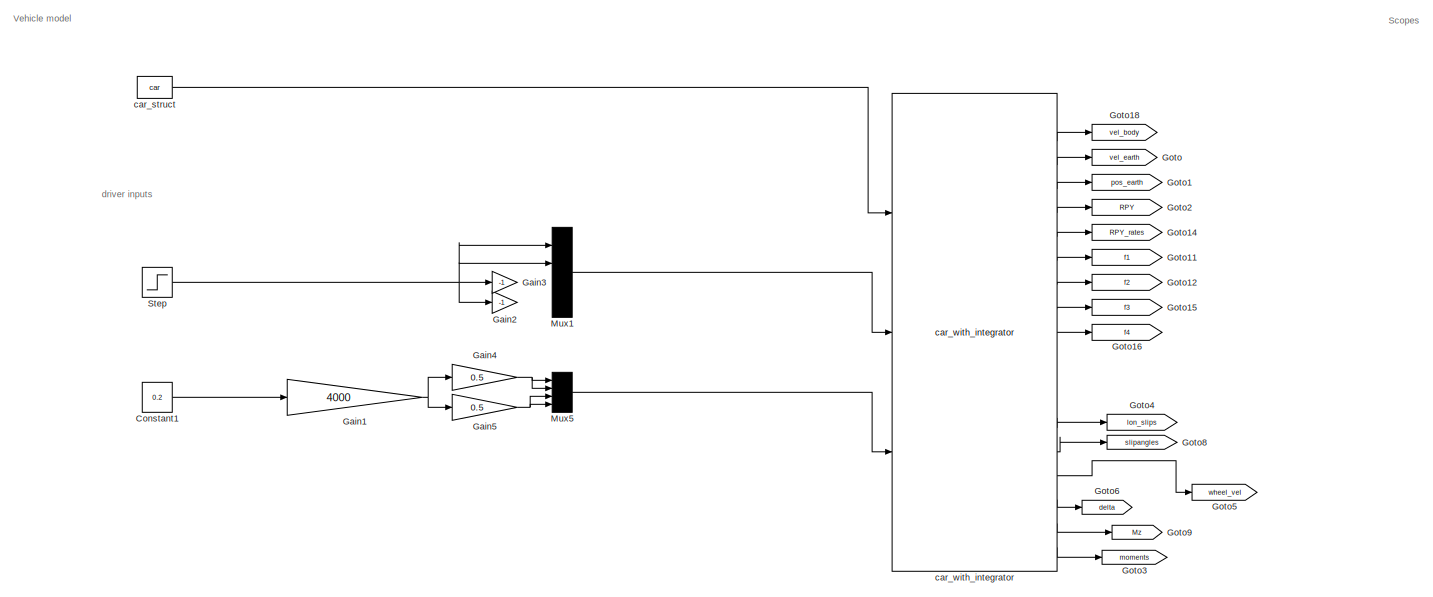
[diagram: root canvas - part 1/2, center side, full height]
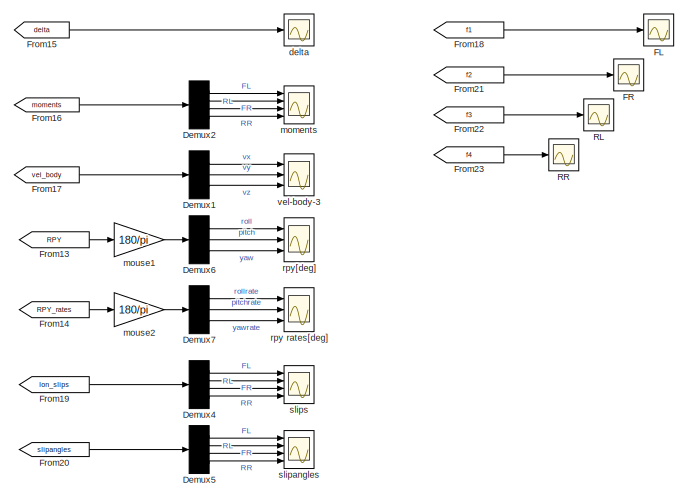
[diagram: root canvas - part 2/2, right side, full height]
MODEL slx_7158e97f0863
KIND model
CONFIG AbsTol = auto
CONFIG EnableMultiTasking = on
CONFIG FixedStep = 0.001
CONFIG InitFcn = create_ephysenet_inifile\n
CONFIG MaxStep = auto
CONFIG MinStep = auto
CONFIG PreLoadFcn = run('m-files/add_to_path.m')
CONFIG RelTol = 1e-3
CONFIG SampleTimeConstraint = Unconstrained
CONFIG Solver = ode1
CONFIG SolverName = ode1
CONFIG StartTime = 0.0
CONFIG StopTime = 50
BLOCK [Constant] Constant1
  Value = 0.2
BLOCK [Demux] Demux1
  DisplayOption = bar
  Outputs = 3
  Ports = [1, 3]
BLOCK [Demux] Demux2
  DisplayOption = bar
  Ports = [1, 4]
BLOCK [Demux] Demux4
  DisplayOption = bar
  Ports = [1, 4]
BLOCK [Demux] Demux5
  DisplayOption = bar
  Ports = [1, 4]
BLOCK [Demux] Demux6
  DisplayOption = bar
  Outputs = 3
  Ports = [1, 3]
BLOCK [Demux] Demux7
  DisplayOption = bar
  Outputs = 3
  Ports = [1, 3]
BLOCK [Scope] FL
  Floating = off
  NumInputPorts = 1
  Ports = [1]
  ScopeSpecificationString = Simulink.scopes.TimeScopeBlockCfg('CurrentConfiguration', extmgr.ConfigurationSet(extmgr.Configuration('Core','General UI',true),extmgr.Configuration('Core','Source UI',true),extmgr.Configuration('Sources','WiredSimulink',true,'DataLoggingVariableName','ScopeData2'),extmgr.Configuration('Visuals','Time Domain',true),extmgr.Configuration('Tools','Plot Navigation',true),extmgr.Configuration('Tools',...<+40ch>
BLOCK [Scope] FR
  Floating = off
  NumInputPorts = 1
  Ports = [1]
  ScopeSpecificationString = Simulink.scopes.TimeScopeBlockCfg('CurrentConfiguration', extmgr.ConfigurationSet(extmgr.Configuration('Core','General UI',true),extmgr.Configuration('Core','Source UI',true),extmgr.Configuration('Sources','WiredSimulink',true,'DataLoggingVariableName','ScopeData3'),extmgr.Configuration('Visuals','Time Domain',true),extmgr.Configuration('Tools','Plot Navigation',true),extmgr.Configuration('Tools',...<+40ch>
BLOCK [From] From13
  GotoTag = RPY
  TagVisibility = global
BLOCK [From] From14
  GotoTag = RPY_rates
BLOCK [From] From15
  GotoTag = delta
BLOCK [From] From16
  GotoTag = moments
BLOCK [From] From17
  GotoTag = vel_body
BLOCK [From] From18
  GotoTag = f1
BLOCK [From] From19
  GotoTag = lon_slips
BLOCK [From] From20
  GotoTag = slipangles
BLOCK [From] From21
  GotoTag = f2
BLOCK [From] From22
  GotoTag = f3
BLOCK [From] From23
  GotoTag = f4
BLOCK [Gain] Gain1
  Gain = 4000
  OutDataTypeStr = Inherit: Inherit via internal rule
  ParamDataTypeStr = Inherit: Inherit via internal rule
  SaturateOnIntegerOverflow = off
BLOCK [Gain] Gain2
  Gain = -1
  OutDataTypeStr = Inherit: Inherit via internal rule
  ParamDataTypeStr = Inherit: Inherit via internal rule
  SaturateOnIntegerOverflow = off
BLOCK [Gain] Gain3
  Gain = -1
  OutDataTypeStr = Inherit: Inherit via internal rule
  ParamDataTypeStr = Inherit: Inherit via internal rule
  SaturateOnIntegerOverflow = off
BLOCK [Gain] Gain4
  Gain = 0.5
  OutDataTypeStr = Inherit: Inherit via internal rule
  ParamDataTypeStr = Inherit: Inherit via internal rule
  SaturateOnIntegerOverflow = off
BLOCK [Gain] Gain5
  Gain = 0.5
  OutDataTypeStr = Inherit: Inherit via internal rule
  ParamDataTypeStr = Inherit: Inherit via internal rule
  SaturateOnIntegerOverflow = off
BLOCK [Goto] Goto
  GotoTag = vel_earth
BLOCK [Goto] Goto1
  GotoTag = pos_earth
  TagVisibility = global
BLOCK [Goto] Goto11
  GotoTag = f1
BLOCK [Goto] Goto12
  GotoTag = f2
BLOCK [Goto] Goto14
  GotoTag = RPY_rates
BLOCK [Goto] Goto15
  GotoTag = f3
BLOCK [Goto] Goto16
  GotoTag = f4
BLOCK [Goto] Goto18
  GotoTag = vel_body
BLOCK [Goto] Goto2
  GotoTag = RPY
  TagVisibility = global
BLOCK [Goto] Goto3
  GotoTag = moments
BLOCK [Goto] Goto4
  GotoTag = lon_slips
BLOCK [Goto] Goto5
  GotoTag = wheel_vel
BLOCK [Goto] Goto6
  GotoTag = delta
BLOCK [Goto] Goto8
  GotoTag = slipangles
BLOCK [Goto] Goto9
  GotoTag = Mz
BLOCK [Mux] Mux1
  DisplayOption = bar
  Ports = [4, 1]
BLOCK [Mux] Mux5
  DisplayOption = bar
  Ports = [4, 1]
BLOCK [Scope] RL
  Floating = off
  NumInputPorts = 1
  Ports = [1]
  ScopeSpecificationString = Simulink.scopes.TimeScopeBlockCfg('CurrentConfiguration', extmgr.ConfigurationSet(extmgr.Configuration('Core','General UI',true),extmgr.Configuration('Core','Source UI',true),extmgr.Configuration('Sources','WiredSimulink',true,'DataLoggingVariableName','ScopeData4'),extmgr.Configuration('Visuals','Time Domain',true),extmgr.Configuration('Tools','Plot Navigation',true),extmgr.Configuration('Tools',...<+40ch>
BLOCK [Scope] RR
  Floating = off
  NumInputPorts = 1
  Ports = [1]
  ScopeSpecificationString = Simulink.scopes.TimeScopeBlockCfg('CurrentConfiguration', extmgr.ConfigurationSet(extmgr.Configuration('Core','General UI',true),extmgr.Configuration('Core','Source UI',true),extmgr.Configuration('Sources','WiredSimulink',true,'DataLoggingVariableName','ScopeData5'),extmgr.Configuration('Visuals','Time Domain',true),extmgr.Configuration('Tools','Plot Navigation',true),extmgr.Configuration('Tools',...<+40ch>
BLOCK [Step] Step
  After = deg2rad(15)
  SampleTime = 0
  Time = 10
BLOCK [Constant] car_struct
  OutDataTypeStr = Bus: car_bus
  Value = car
BLOCK [Reference] car_with_integrator  REF=car_library/car_with_integrator  (lib defined in slx_7c8ac54ddd08)
  Ports = [3, 19]
  SourceBlock = car_library/car_with_integrator
  SourceType = SubSystem
BLOCK [Scope] delta
  Floating = off
  NumInputPorts = 1
  Ports = [1]
  ScopeSpecificationString = Simulink.scopes.TimeScopeBlockCfg('CurrentConfiguration', extmgr.ConfigurationSet(extmgr.Configuration('Core','General UI',true),extmgr.Configuration('Core','Source UI',true),extmgr.Configuration('Sources','WiredSimulink',true,'DataLoggingVariableName','ScopeData5'),extmgr.Configuration('Visuals','Time Domain',true,'SerializedDisplays',{struct('MinYLimReal','-0.04353','MaxYLimReal','0.35679','YLab...<+1427ch>
BLOCK [Scope] moments
  Floating = off
  NumInputPorts = 4
  Ports = [4]
  ScopeSpecificationString = Simulink.scopes.TimeScopeBlockCfg('CurrentConfiguration', extmgr.ConfigurationSet(extmgr.Configuration('Core','General UI',true),extmgr.Configuration('Core','Source UI',true),extmgr.Configuration('Sources','WiredSimulink',true,'DataLoggingVariableName','ScopeData6'),extmgr.Configuration('Visuals','Time Domain',true,'SerializedDisplays',{struct('MinYLimReal','-1152.50011','MaxYLimReal','1192.49995'...<+1468ch>
BLOCK [Gain] mouse1
  Gain = 180/pi
  OutDataTypeStr = Inherit: Inherit via internal rule
  ParamDataTypeStr = Inherit: Inherit via internal rule
  SaturateOnIntegerOverflow = off
BLOCK [Gain] mouse2
  Gain = 180/pi
  OutDataTypeStr = Inherit: Inherit via internal rule
  ParamDataTypeStr = Inherit: Inherit via internal rule
  SaturateOnIntegerOverflow = off
BLOCK [Scope] rpy rates[deg]
  Floating = off
  NumInputPorts = 3
  Ports = [3]
  ScopeSpecificationString = Simulink.scopes.TimeScopeBlockCfg('CurrentConfiguration', extmgr.ConfigurationSet(extmgr.Configuration('Core','General UI',true),extmgr.Configuration('Core','Source UI',true),extmgr.Configuration('Sources','WiredSimulink',true,'DataLoggingVariableName','ScopeData1'),extmgr.Configuration('Visuals','Time Domain',true,'SerializedDisplays',{struct('MinYLimReal','-0.17374','MaxYLimReal','1.45174','YLab...<+1430ch>
BLOCK [Scope] rpy[deg] 
  Floating = off
  NumInputPorts = 3
  Ports = [3]
  ScopeSpecificationString = Simulink.scopes.TimeScopeBlockCfg('CurrentConfiguration', extmgr.ConfigurationSet(extmgr.Configuration('Core','General UI',true),extmgr.Configuration('Core','Source UI',true),extmgr.Configuration('Sources','WiredSimulink',true,'DataLoggingVariableName','ScopeData7'),extmgr.Configuration('Visuals','Time Domain',true,'SerializedDisplays',{struct('MinYLimReal','-0.17374','MaxYLimReal','1.45174','YLab...<+1448ch>
BLOCK [Scope] slipangles
  Floating = off
  NumInputPorts = 4
  Ports = [4]
  ScopeSpecificationString = Simulink.scopes.TimeScopeBlockCfg('CurrentConfiguration', extmgr.ConfigurationSet(extmgr.Configuration('Core','General UI',true),extmgr.Configuration('Core','Source UI',true),extmgr.Configuration('Sources','WiredSimulink',true,'DataLoggingVariableName','ScopeData4'),extmgr.Configuration('Visuals','Time Domain',true,'SerializedDisplays',{struct('MinYLimReal','-1.96346','MaxYLimReal','1.96341','YLab...<+1492ch>
BLOCK [Scope] slips
  Floating = off
  NumInputPorts = 4
  Ports = [4]
  ScopeSpecificationString = Simulink.scopes.TimeScopeBlockCfg('CurrentConfiguration', extmgr.ConfigurationSet(extmgr.Configuration('Core','General UI',true),extmgr.Configuration('Core','Source UI',true),extmgr.Configuration('Sources','WiredSimulink',true,'DataLoggingVariableName','ScopeData3'),extmgr.Configuration('Visuals','Time Domain',true,'SerializedDisplays',{struct('MinYLimReal','-1.89286','MaxYLimReal','2.10714','YLab...<+1446ch>
BLOCK [Scope] vel-body-3 
  Floating = off
  NumInputPorts = 3
  Ports = [3]
  ScopeSpecificationString = Simulink.scopes.TimeScopeBlockCfg('CurrentConfiguration', extmgr.ConfigurationSet(extmgr.Configuration('Core','General UI',true),extmgr.Configuration('Core','Source UI',true),extmgr.Configuration('Sources','WiredSimulink',true,'DataLoggingVariableName','ScopeData1'),extmgr.Configuration('Visuals','Time Domain',true,'SerializedDisplays',{struct('MinYLimReal','8.49008','MaxYLimReal','90.43186','YLab...<+2774ch>
ANNOTATION (root): Scopes
ANNOTATION (root): Vehicle model
ANNOTATION (root): driver inputs
LINE Constant1:1 -> Gain1:1
LINE Demux1:1 -> vel-body-3 :1
LINE Demux1:2 -> vel-body-3 :2
LINE Demux1:3 -> vel-body-3 :3
LINE Demux2:1 -> moments:1
LINE Demux2:2 -> moments:2
LINE Demux2:3 -> moments:3
LINE Demux2:4 -> moments:4
LINE Demux4:1 -> slips:1
LINE Demux4:2 -> slips:2
LINE Demux4:3 -> slips:3
LINE Demux4:4 -> slips:4
LINE Demux5:1 -> slipangles:1
LINE Demux5:2 -> slipangles:2
LINE Demux5:3 -> slipangles:3
LINE Demux5:4 -> slipangles:4
LINE Demux6:1 -> rpy[deg] :1
LINE Demux6:2 -> rpy[deg] :2
LINE Demux6:3 -> rpy[deg] :3
LINE Demux7:1 -> rpy rates[deg]:1
LINE Demux7:2 -> rpy rates[deg]:2
LINE Demux7:3 -> rpy rates[deg]:3
LINE From13:1 -> mouse1:1
LINE From14:1 -> mouse2:1
LINE From15:1 -> delta:1
LINE From16:1 -> Demux2:1
LINE From17:1 -> Demux1:1
LINE From18:1 -> FL:1
LINE From19:1 -> Demux4:1
LINE From20:1 -> Demux5:1
LINE From21:1 -> FR:1
LINE From22:1 -> RL:1
LINE From23:1 -> RR:1
NET Gain1:1 -> Gain4:1, Gain5:1
NET Gain4:1 -> Mux5:1, Mux5:2
NET Gain5:1 -> Mux5:3, Mux5:4
LINE Mux1:1 -> car_with_integrator:2
LINE Mux5:1 -> car_with_integrator:3
NET Step:1 -> Gain2:1, Gain3:1, Mux1:1, Mux1:2
LINE car_struct:1 -> car_with_integrator:1
LINE car_with_integrator:10 -> Goto16:1
LINE car_with_integrator:14 -> Goto4:1
LINE car_with_integrator:15 -> Goto8:1
LINE car_with_integrator:16 -> Goto5:1
LINE car_with_integrator:17 -> Goto6:1
LINE car_with_integrator:18 -> Goto9:1
LINE car_with_integrator:19 -> Goto3:1
LINE car_with_integrator:2 -> Goto18:1
LINE car_with_integrator:3 -> Goto:1
LINE car_with_integrator:4 -> Goto1:1
LINE car_with_integrator:5 -> Goto2:1
LINE car_with_integrator:6 -> Goto14:1
LINE car_with_integrator:7 -> Goto11:1
LINE car_with_integrator:8 -> Goto12:1
LINE car_with_integrator:9 -> Goto15:1
LINE mouse1:1 -> Demux6:1
LINE mouse2:1 -> Demux7:1
note: NET lines group one-source signal fan-out (src -> all destinations, sorted); 1:1 wires keep LINE
